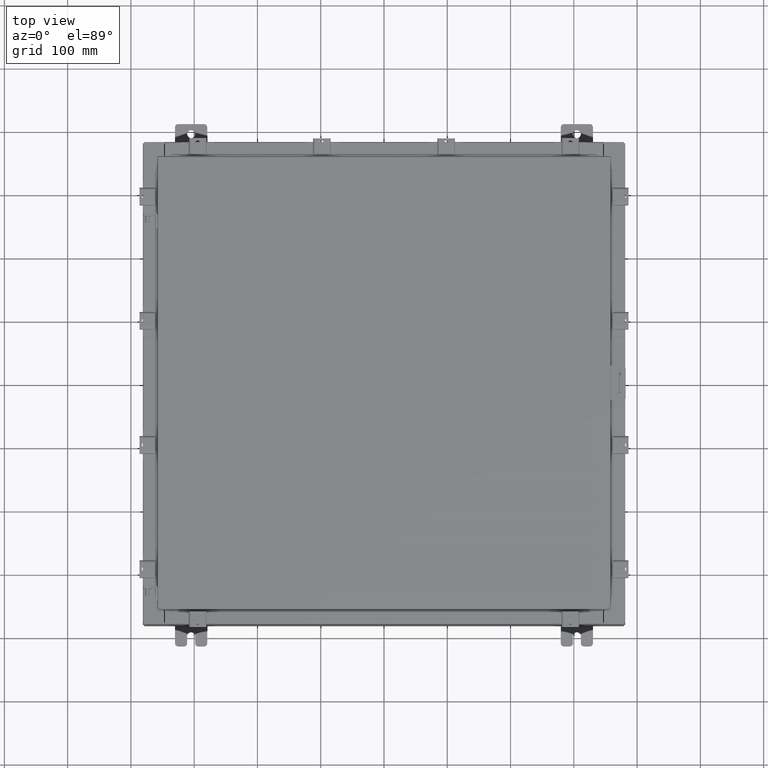
[diagram: clean part render]
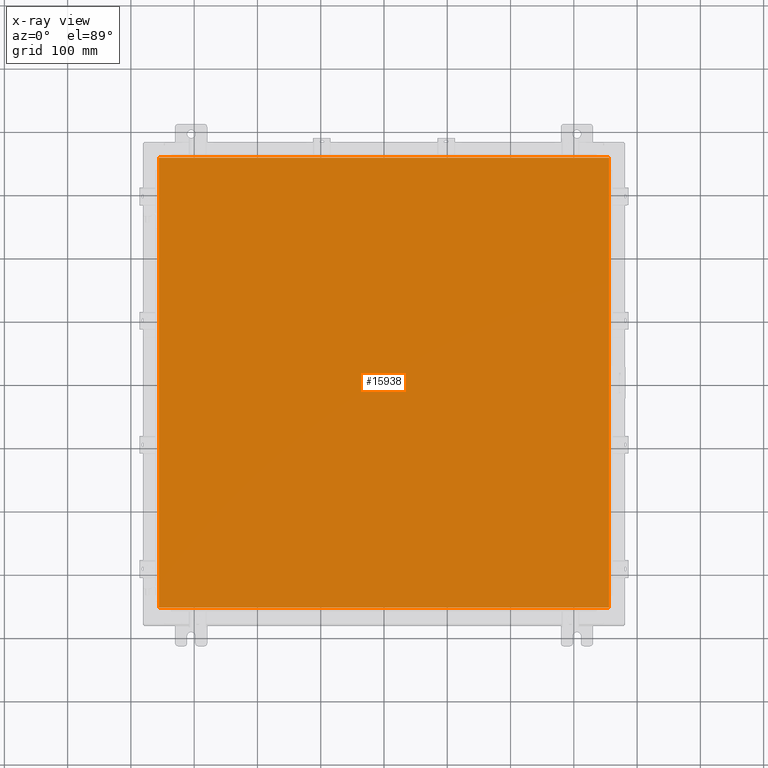
[diagram: x-ray — body ghosted, one internal face saturated and labeled with its STEP entity id]
A machine part, top view, then the same camera in x-ray: the body is ghosted and one INTERNAL B-rep face — a face not visible from any outside direction — is saturated and labeled: STEP entity #15938.
In plain terms, the highlighted planar face has unit normal (0, 0, -1).
Its self-contained STEP definition (entity closure, byte-faithful):
#749 = DIRECTION ( 'NONE',  ( 0.0000000000000000000, 0.0000000000000000000, -1.000000000000000000 ) ) ;
#2841 = ORIENTED_EDGE ( 'NONE', *, *, #23059, .F. ) ;
#2998 = EDGE_CURVE ( 'NONE', #12204, #12410, #14069, .T. ) ;
#3714 = CARTESIAN_POINT ( 'NONE',  ( -14.00629999999999800, -14.00629999999999800, -0.07470000000000015500 ) ) ;
#3742 = LINE ( 'NONE', #24205, #13708 ) ;
#4267 = CARTESIAN_POINT ( 'NONE',  ( 14.00629999999999800, 14.00629999999999800, -0.07470000000000015500 ) ) ;
#5517 = DIRECTION ( 'NONE',  ( 1.000000000000000000, -0.0000000000000000000, -0.0000000000000000000 ) ) ;
#6539 = CARTESIAN_POINT ( 'NONE',  ( 14.00629999999999800, 14.00629999999999800, -0.07470000000000015500 ) ) ;
#7882 = FACE_OUTER_BOUND ( 'NONE', #18738, .T. ) ;
#8177 = CARTESIAN_POINT ( 'NONE',  ( 0.0000000000000000000, 0.0000000000000000000, -0.07470000000000015500 ) ) ;
#9182 = DIRECTION ( 'NONE',  ( 0.0000000000000000000, -1.000000000000000000, 0.0000000000000000000 ) ) ;
#9393 = EDGE_CURVE ( 'NONE', #13017, #18273, #11303, .T. ) ;
#11303 = LINE ( 'NONE', #18524, #16294 ) ;
#11938 = CARTESIAN_POINT ( 'NONE',  ( 14.00629999999999800, -14.00629999999999800, -0.07470000000000015500 ) ) ;
#11983 = PLANE ( 'NONE',  #22442 ) ;
#12204 = VERTEX_POINT ( 'NONE', #17201 ) ;
#12410 = VERTEX_POINT ( 'NONE', #6539 ) ;
#13017 = VERTEX_POINT ( 'NONE', #15700 ) ;
#13708 = VECTOR ( 'NONE', #5517, 39.37007874015748100 ) ;
#13863 = DIRECTION ( 'NONE',  ( -1.000000000000000000, 0.0000000000000000000, -0.0000000000000000000 ) ) ;
#14069 = LINE ( 'NONE', #11938, #19041 ) ;
#14559 = VECTOR ( 'NONE', #21095, 39.37007874015748100 ) ;
#14790 = ORIENTED_EDGE ( 'NONE', *, *, #2998, .F. ) ;
#15700 = CARTESIAN_POINT ( 'NONE',  ( -14.00629999999999800, 14.00629999999999800, -0.07470000000000015500 ) ) ;
#15938 = ADVANCED_FACE ( 'NONE', ( #7882 ), #11983, .T. ) ;
#16294 = VECTOR ( 'NONE', #9182, 39.37007874015748100 ) ;
#17126 = ORIENTED_EDGE ( 'NONE', *, *, #22269, .F. ) ;
#17201 = CARTESIAN_POINT ( 'NONE',  ( 14.00629999999999800, -14.00629999999999800, -0.07470000000000015500 ) ) ;
#18273 = VERTEX_POINT ( 'NONE', #3714 ) ;
#18524 = CARTESIAN_POINT ( 'NONE',  ( -14.00629999999999800, 14.00629999999999800, -0.07470000000000015500 ) ) ;
#18738 = EDGE_LOOP ( 'NONE', ( #14790, #17126, #22328, #2841 ) ) ;
#19041 = VECTOR ( 'NONE', #23092, 39.37007874015748100 ) ;
#20091 = LINE ( 'NONE', #4267, #14559 ) ;
#21095 = DIRECTION ( 'NONE',  ( -1.000000000000000000, -0.0000000000000000000, -0.0000000000000000000 ) ) ;
#22269 = EDGE_CURVE ( 'NONE', #18273, #12204, #3742, .T. ) ;
#22328 = ORIENTED_EDGE ( 'NONE', *, *, #9393, .F. ) ;
#22442 = AXIS2_PLACEMENT_3D ( 'NONE', #8177, #749, #13863 ) ;
#23059 = EDGE_CURVE ( 'NONE', #12410, #13017, #20091, .T. ) ;
#23092 = DIRECTION ( 'NONE',  ( 0.0000000000000000000, 1.000000000000000000, 0.0000000000000000000 ) ) ;
#24205 = CARTESIAN_POINT ( 'NONE',  ( -14.00629999999999800, -14.00629999999999800, -0.07470000000000015500 ) ) ;